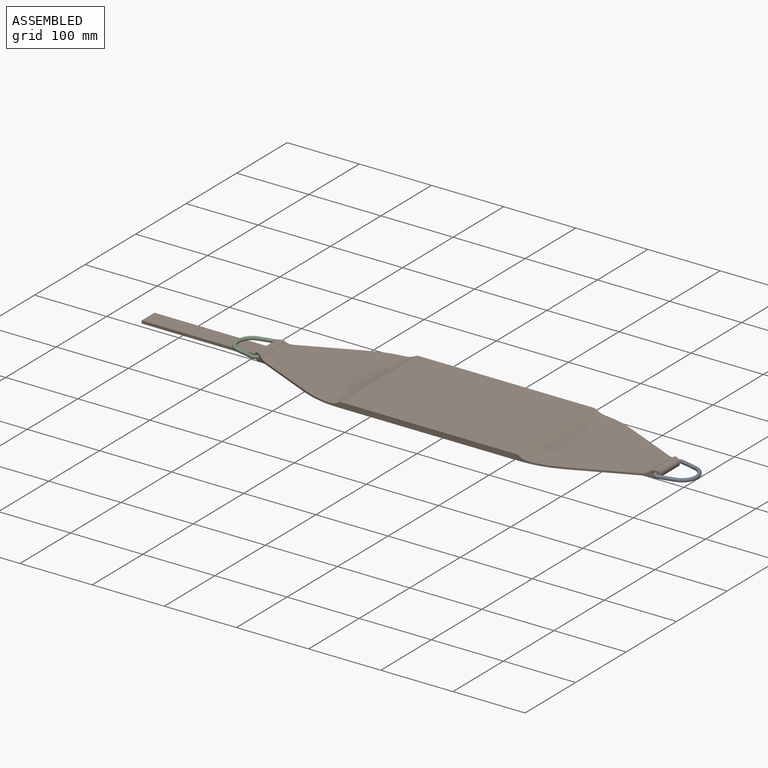
[diagram: assembled view]
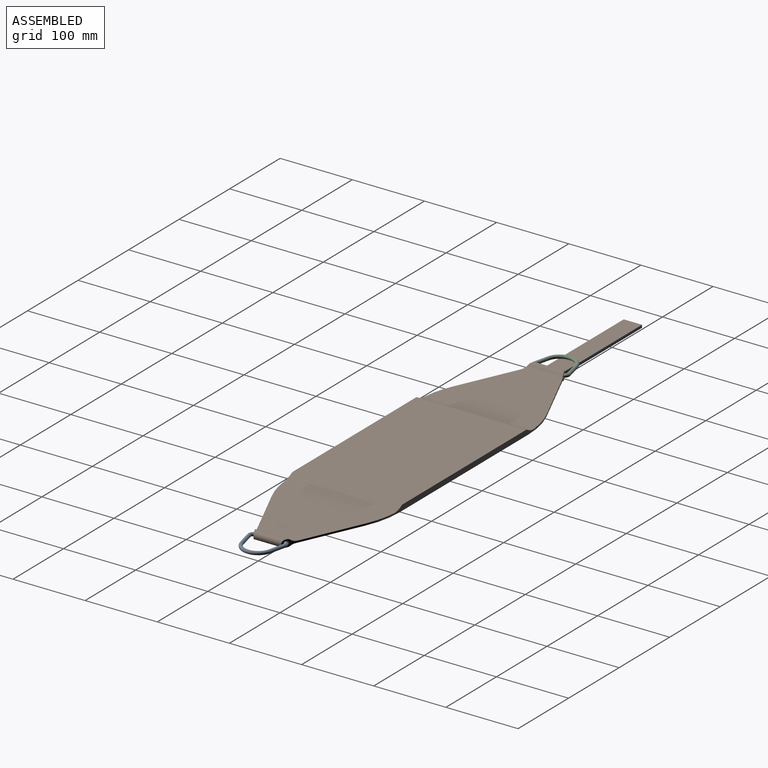
[diagram: assembled view, second angle]
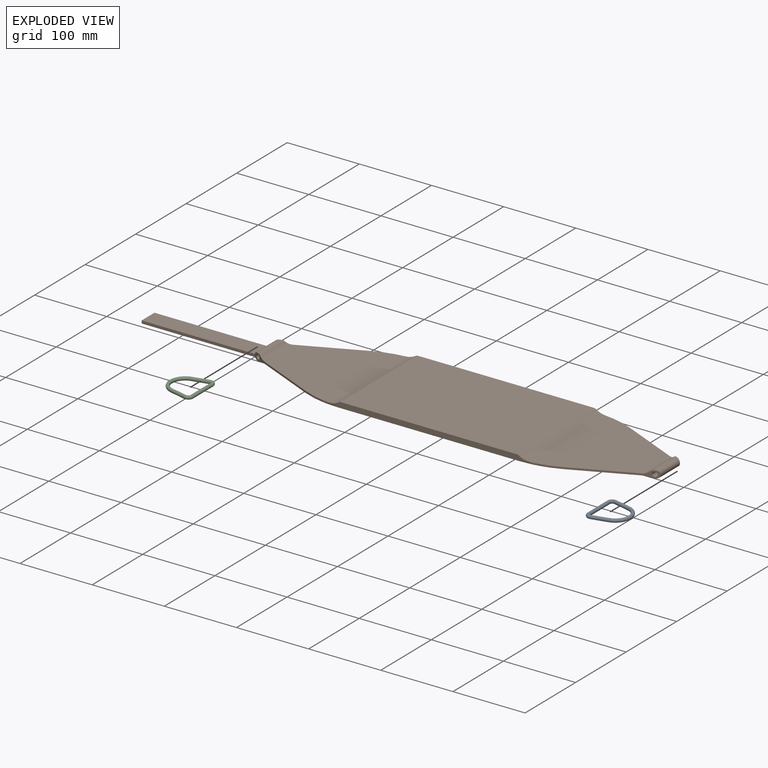
[diagram: exploded view]
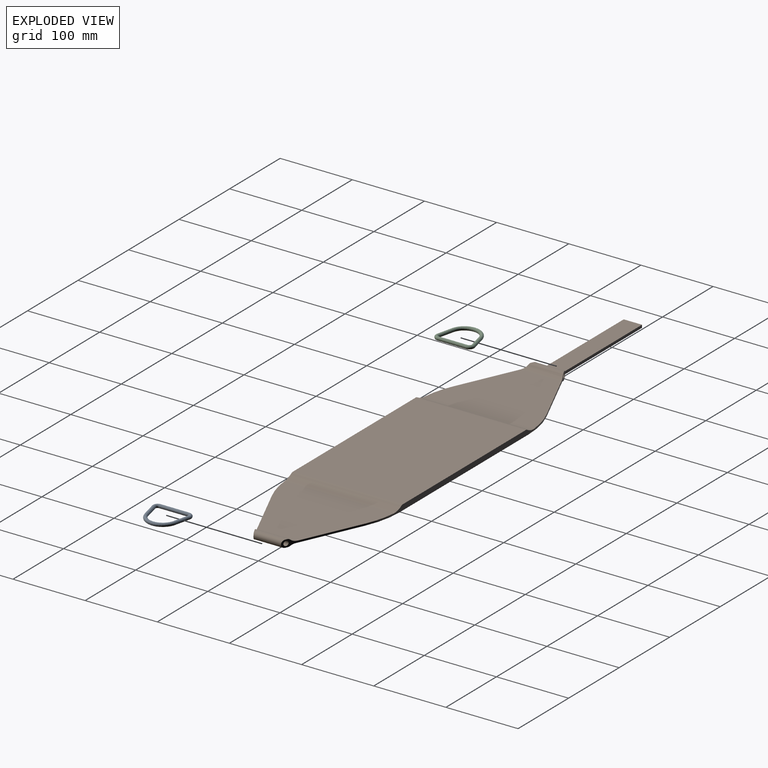
[diagram: exploded view, second angle]
ASSEMBLY  parts=3 mates=2
PART A: 6 faces, bbox 55.3x4.8x50.2 mm
  f0: torus R=4.83mm, axis (0,-1,0), area 132mm2, adj f1,f5
  f1: cylinder r=2.41mm len=22.83mm, axis (-0.23,0,-0.97), area 338.4mm2, adj f0,f2
  f2: torus R=19.88mm, axis (0,-1,0), area 805.7mm2, adj f1,f3
  f3: cylinder r=2.41mm len=22.83mm, axis (-0.23,0,0.97), area 338.4mm2, adj f2,f4
  f4: torus R=4.83mm, axis (0,-1,0), area 132mm2, adj f3,f5
  f5: cylinder r=2.41mm len=39.62mm, axis (-1,0,0), area 600.8mm2, adj f0,f4
PART B: 47 faces, bbox 724.5x153x12 mm
  f0: plane 527.6x63.5mm, normal (0,0,-1), area 27999.4mm2, adj f4,f7,f8,f9,f10,f16,f35,f41
  f1: plane 10.09x3.22mm, normal (0,0,-1), area 30.1mm2, adj f3,f16,f28,f41
  f2: cylinder r=3.17mm len=46.51mm, axis (0,-1,0), area 772mm2, adj f15,f16,f44,f45,f46
  f3: cylinder r=5.08mm len=11.26mm, axis (0,-1,0), area 29.3mm2, adj f1,f4,f16,f41
  f4: cylinder r=12.7mm len=14.21mm, axis (0,-1,0), area 87.5mm2, adj f0,f3,f16,f41
  f5: plane 151.31x122.43mm, normal (0,0,1), area 13412.7mm2, adj f9,f10,f11,f12,f22,f34
  f6: plane 527.6x63.5mm, normal (0,0,-1), area 27999.4mm2, adj f11,f12,f13,f14,f15,f35,f37,f43
  f7: cylinder r=127mm len=52.12mm, axis (0,0,-1), area 147.5mm2, adj f0,f8,f16,f17,f21
  f8: plane 254x7.62mm, normal (0,-1,0), area 1926.9mm2, adj f0,f7,f9,f18,f19,f20,f21,f22
  f9: cylinder r=127mm len=52.12mm, axis (0,0,-1), area 147.5mm2, adj f0,f5,f8,f10,f22
  f10: plane 102.74x46.56mm, normal (0.41,-0.91,0), area 343.1mm2, adj f0,f5,f9,f25,f26,f27,f31,f32
  f11: plane 102.47x46.29mm, normal (0.41,0.91,0), area 343.1mm2, adj f5,f6,f12,f25,f26,f27,f31,f32
  f12: cylinder r=127mm len=52.12mm, axis (0,0,-1), area 147.5mm2, adj f5,f6,f11,f13,f22
  f13: plane 254x7.62mm, normal (0,1,0), area 1926.9mm2, adj f6,f12,f14,f18,f19,f20,f21,f22
  f14: cylinder r=127mm len=52.12mm, axis (0,0,-1), area 147.5mm2, adj f6,f13,f15,f17,f21
  f15: plane 102.74x46.56mm, normal (-0.41,0.91,0), area 343.1mm2, adj f2,f6,f14,f17,f23,f24,f28,f29
  f16: plane 102.47x46.29mm, normal (-0.41,-0.91,0), area 343.1mm2, adj f0,f1,f2,f3,f4,f7,f17,f24
  f17: plane 151.31x122.43mm, normal (0,0,1), area 13412.7mm2, adj f7,f14,f15,f16,f21,f36
  f18: plane 243.84x152.4mm, normal (0,0,1), area 37161.2mm2, adj f8,f13,f19,f20
  f19: cylinder r=5.08mm len=152.4mm, axis (0,1,0), area 453.4mm2, adj f8,f13,f18,f21
  f20: cylinder r=5.08mm len=152.4mm, axis (0,-1,0), area 453.4mm2, adj f8,f13,f18,f22
  f21: cylinder r=25.4mm len=152.4mm, axis (0,1,0), area 2260.5mm2, adj f7,f8,f13,f14,f17,f19
  f22: cylinder r=25.4mm len=152.4mm, axis (0,-1,0), area 2260.5mm2, adj f5,f8,f9,f12,f13,f20
  f23: plane 10.09x3.22mm, normal (0,0,-1), area 30.1mm2, adj f15,f28,f29,f43
  f24: plane 44.96x2.54mm, normal (0,0,1), area 111.3mm2, adj f15,f16,f28,f30
  f25: plane 45.57x3.22mm, normal (0,0,-1), area 142.1mm2, adj f10,f11,f31,f32
  f26: plane 44.96x2.54mm, normal (0,0,1), area 111.3mm2, adj f10,f11,f32,f33
  f27: cylinder r=3.17mm len=46.53mm, axis (0,-1,0), area 870.9mm2, adj f10,f11
  f28: cylinder r=5.08mm len=42.67mm, axis (0,1,0), area 499.4mm2, adj f1,f15,f16,f23,f24,f38,f41,f43
  f29: cylinder r=5.08mm len=11.26mm, axis (0,-1,0), area 29.3mm2, adj f15,f23,f37,f43
  f30: cylinder r=5.08mm len=48.16mm, axis (0,-1,0), area 183.3mm2, adj f15,f16,f24,f36
  f31: cylinder r=5.08mm len=47.93mm, axis (0,-1,0), area 128.5mm2, adj f10,f11,f25,f35
  f32: cylinder r=5.08mm len=42.67mm, axis (0,1,0), area 634.6mm2, adj f10,f11,f25,f26
  f33: cylinder r=5.08mm len=48.16mm, axis (0,1,0), area 183.3mm2, adj f10,f11,f26,f34
  f34: cylinder r=12.7mm len=56.16mm, axis (0,1,0), area 513.5mm2, adj f5,f10,f11,f33
  f35: cylinder r=12.7mm len=53.81mm, axis (0,-1,0), area 349.6mm2, adj f0,f6,f10,f11,f31,f42
  f36: cylinder r=12.7mm len=56.16mm, axis (0,-1,0), area 513.5mm2, adj f15,f16,f17,f30
  f37: cylinder r=12.7mm len=14.21mm, axis (0,-1,0), area 87.5mm2, adj f6,f15,f29,f43
  f38: plane 162.03x25.4mm, normal (0,0,1), area 4115.6mm2, adj f28,f40,f41,f43
  f39: plane 706.41x25.4mm, normal (0,0,-1), area 17942.8mm2, adj f40,f41,f42,f43
  f40: plane 25.4x3.81mm, normal (-1,0,0), area 96.8mm2, adj f38,f39,f41,f43
  f41: plane 706.41x3.81mm, normal (0,-1,0), area 2665.4mm2, adj f0,f1,f3,f4,f28,f38,f39,f40
  f42: plane 25.4x3.81mm, normal (1,0,0), area 96.8mm2, adj f35,f39,f41,f43
  f43: plane 706.41x3.81mm, normal (0,1,0), area 2665.4mm2, adj f6,f23,f28,f29,f37,f38,f39,f40
  f44: plane 3.65x0.58mm, normal (0,1,0), area 1.4mm2, adj f2,f46
  f45: plane 3.65x0.58mm, normal (0,-1,0), area 1.4mm2, adj f2,f46
  f46: plane 25.4x3.65mm, normal (0,0,1), area 92.8mm2, adj f2,f44,f45
PART C: same geometry as A
PLACE A rot(axis=(-0.58,0.58,-0.58),120deg) t=(273.02,-1.22,-1.13)mm
PLACE B t=(0.34,-0.59,-3.72)mm fixed
PLACE C rot(axis=(0.58,-0.58,-0.58),120deg) t=(-272.33,-0.87,-1.13)mm
MATE slider A.f5 <-> B.f27  axis (0,1,0) through (275.43,-1.22,-1.13)mm
MATE slider C.f5 <-> B.f2  axis (0,1,0) through (-274.74,-0.87,-1.13)mm
